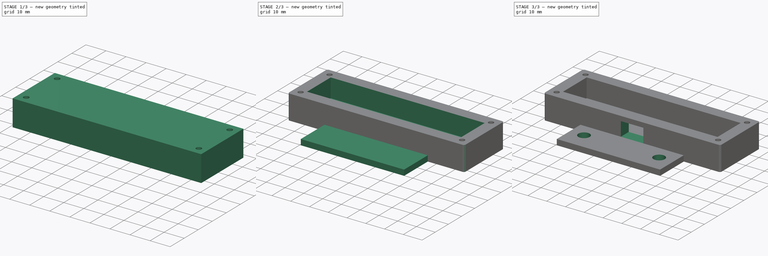
[diagram: build sequence overview — one tinted view per stage of 3, left to right]
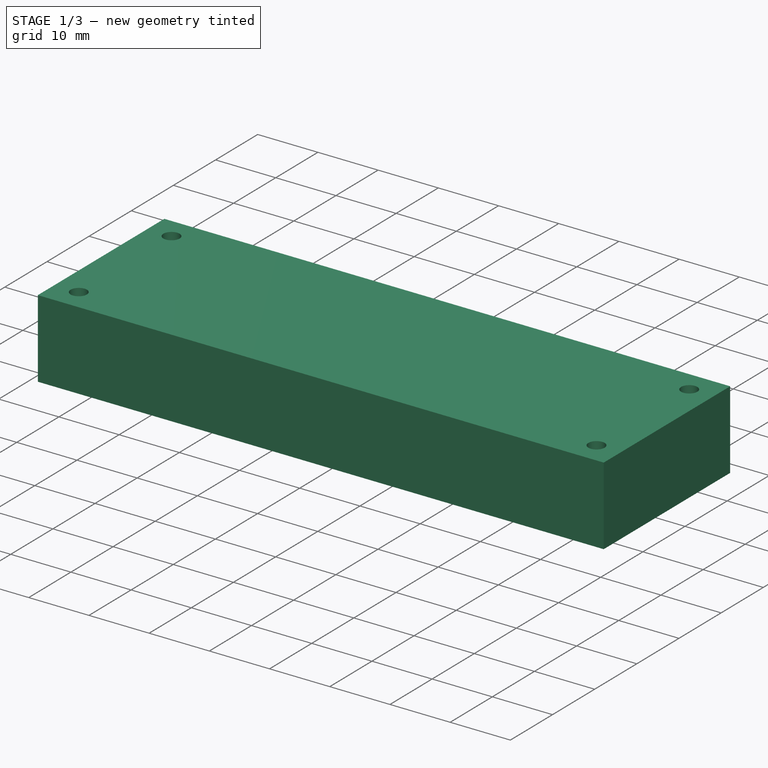
[diagram: stage 1 of 3 — iso view after this stage's code; geometry added in this stage tinted green]
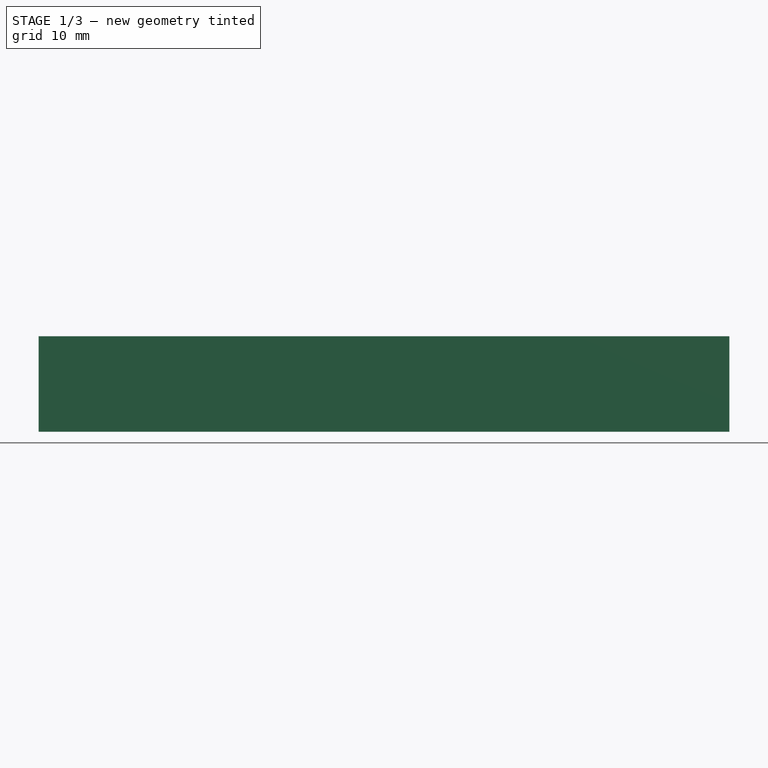
[diagram: stage 1 of 3 — front view after this stage's code; geometry added in this stage tinted green]
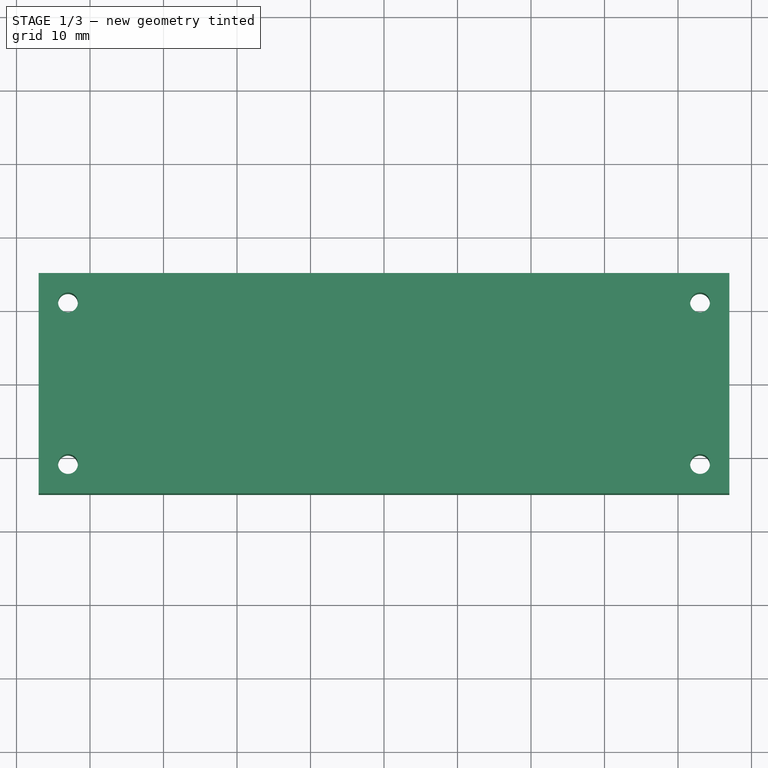
[diagram: stage 1 of 3 — top view after this stage's code; geometry added in this stage tinted green]
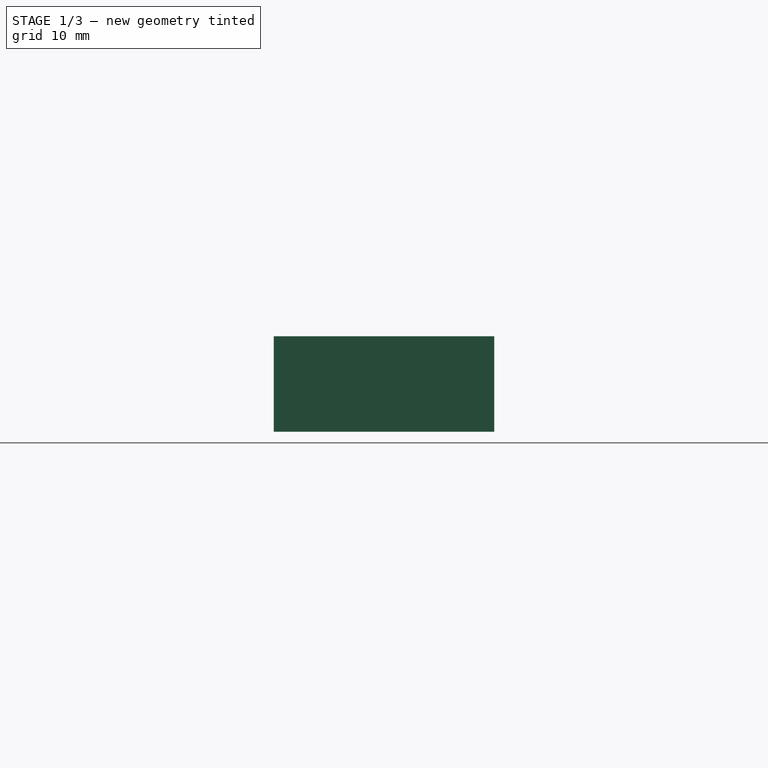
[diagram: stage 1 of 3 — right view after this stage's code; geometry added in this stage tinted green]
FCSTD DOCUMENT  (FreeCAD 0.19R24291 (Git))
Label: elp_lower_case
License: All rights reserved
LicenseURL: http://en.wikipedia.org/wiki/All_rights_reserved
objects: Sketcher::SketchObject×6, PartDesign::Pad×2, PartDesign::Hole×2, PartDesign::Pocket×2, PartDesign::Fillet×1, PartDesign::Body×1
note: 21 computed .brp shape members not serialized (recipe doc carries the construction recipe); baked Part::Feature solids carry a one-line shape summary decoded from their .brp

FEATURE [Sketcher::SketchObject] Sketch  label="base"
  FullyConstrained = true
  MapMode = 5
  Support = -> [XY_Plane]
  sketch-geometry (4):
    g0: LineSegment StartX=-41 StartY=9 StartZ=0 EndX=41 EndY=9 EndZ=0
    g1: LineSegment StartX=-41 StartY=-9 StartZ=0 EndX=41 EndY=-9 EndZ=0
    g2: LineSegment StartX=-41 StartY=9 StartZ=0 EndX=-41 EndY=-9 EndZ=0
    g3: LineSegment StartX=41 StartY=9 StartZ=0 EndX=41 EndY=-9 EndZ=0
  constraints (12):
    c: Horizontal(g0)
    c: Horizontal(g1)
    c: Vertical(g2)
    c: Vertical(g3)
    c: Coincident(g0,g2)
    c: Coincident(g2,g1)
    c: Coincident(g1,g3)
    c: Coincident(g3,g0)
    c: DistanceX(g1,g1) = 82
    c: DistanceY(g3,g3) = 18
    c: DistanceY(g-1,g0) = 9
    c: DistanceX(g1,g-1) = 41
FEATURE [Sketcher::SketchObject] Sketch001  label="frame"
  FullyConstrained = true
  MapMode = 5
  Support = -> [XY_Plane]
  sketch-geometry (4):
    g0: LineSegment StartX=-47 StartY=15 StartZ=0 EndX=-47 EndY=-15 EndZ=0
    g1: LineSegment StartX=-47 StartY=-15 StartZ=0 EndX=47 EndY=-15 EndZ=0
    g2: LineSegment StartX=-47 StartY=15 StartZ=0 EndX=47 EndY=15 EndZ=0
    g3: LineSegment StartX=47 StartY=15 StartZ=0 EndX=47 EndY=-15 EndZ=0
  constraints (12):
    c: Vertical(g0)
    c: Horizontal(g1)
    c: Horizontal(g2)
    c: Vertical(g3)
    c: Coincident(g2,g0)
    c: Coincident(g1,g3)
    c: Coincident(g2,g3)
    c: Coincident(g1,g0)
    c: DistanceY(g1,g2) = 30
    c: DistanceX(g0,g2) = 94
    c: DistanceX(g-1,g1) = 47
    c: DistanceY(g-1,g0) = 15
FEATURE [PartDesign::Pad] Pad
  Direction = (1,1,1)
  Length = 13
  Length2 = 100
  Profile = -> Sketch001
  Reversed = true
  Type = 0
FEATURE [Sketcher::SketchObject] Sketch002
  FullyConstrained = true
  MapMode = 5
  Support = -> [Pad]
  sketch-geometry (4):
    g0: Circle CenterX=-43 CenterY=11 CenterZ=0 NormalX=0 NormalY=0 NormalZ=1 AngleXU=0 Radius=1.5
    g1: Circle CenterX=-43 CenterY=-11 CenterZ=0 NormalX=0 NormalY=0 NormalZ=1 AngleXU=0 Radius=1.5
    g2: Circle CenterX=43 CenterY=11 CenterZ=0 NormalX=0 NormalY=0 NormalZ=1 AngleXU=0 Radius=1.5
    g3: Circle CenterX=43 CenterY=-11 CenterZ=0 NormalX=0 NormalY=0 NormalZ=1 AngleXU=0 Radius=1.5
  constraints (12):
    c: Radius(g0) = 1.5
    c: Equal(g0,g1) = 1.5
    c: Equal(g0,g2) = 1.5
    c: DistanceX(g0,g-1) = 43
    c: DistanceX(g1,g-1) = 43
    c: DistanceX(g-1,g3) = 43
    c: DistanceX(g-1,g2) = 43
    c: DistanceY(g-1,g2) = 11
    c: DistanceY(g3,g-1) = 11
    c: DistanceY(g1,g-1) = 11
    c: DistanceY(g-1,g0) = 11
    c: Radius(g3) = 1.5
FEATURE [PartDesign::Hole] Hole
  BaseFeature = -> Pad
  Depth = 25
  DepthType = 0
  Diameter = 2.7
  DrillForDepth = false
  DrillPoint = 1
  DrillPointAngle = 118
  HoleCutCountersinkAngle = 90
  HoleCutCustomValues = false
  HoleCutDepth = 0
  HoleCutDiameter = 6.1
  HoleCutType = 0
  ModelActualThread = false
  Profile = -> Sketch002
  Tapered = false
  TaperedAngle = 90
  ThreadAngle = 0
  ThreadClass = 0
  ThreadCutOffInner = 0
  ThreadCutOffOuter = 0
  ThreadDirection = 0
  ThreadFit = 0
  ThreadPitch = 0
  ThreadSize = 0
  ThreadType = 0
  Threaded = false
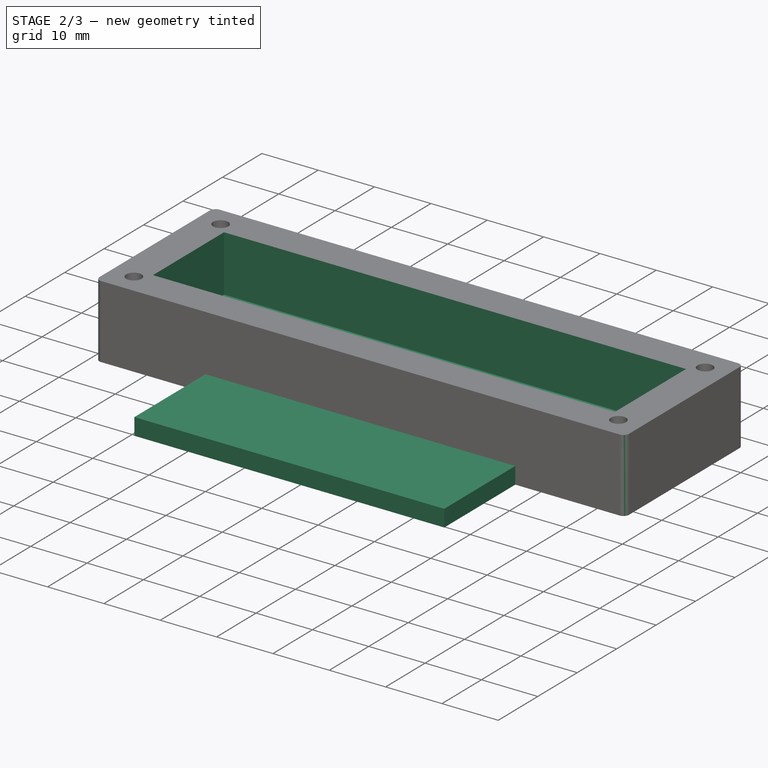
[diagram: stage 2 of 3 — iso view after this stage's code; geometry added in this stage tinted green]
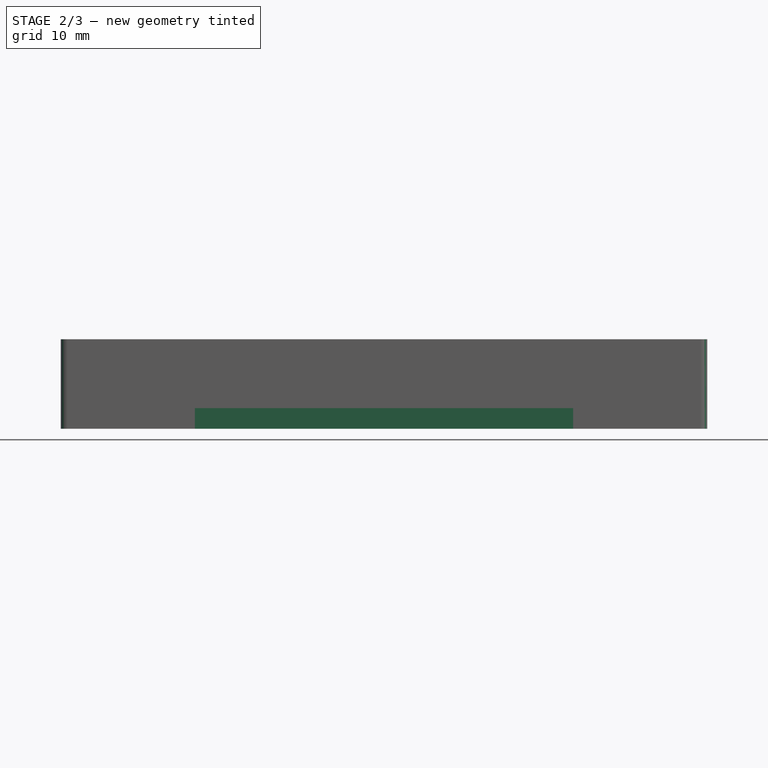
[diagram: stage 2 of 3 — front view after this stage's code; geometry added in this stage tinted green]
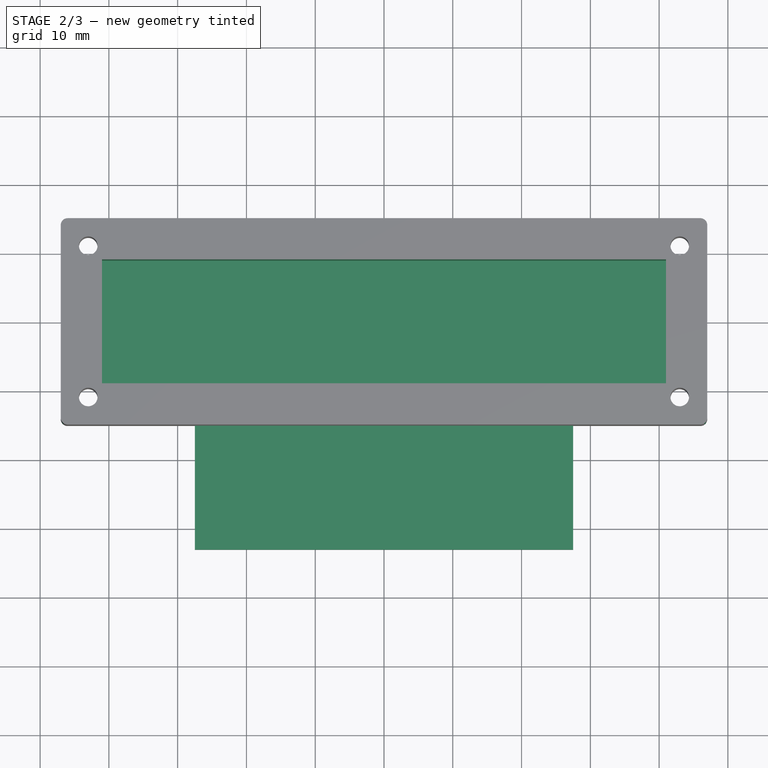
[diagram: stage 2 of 3 — top view after this stage's code; geometry added in this stage tinted green]
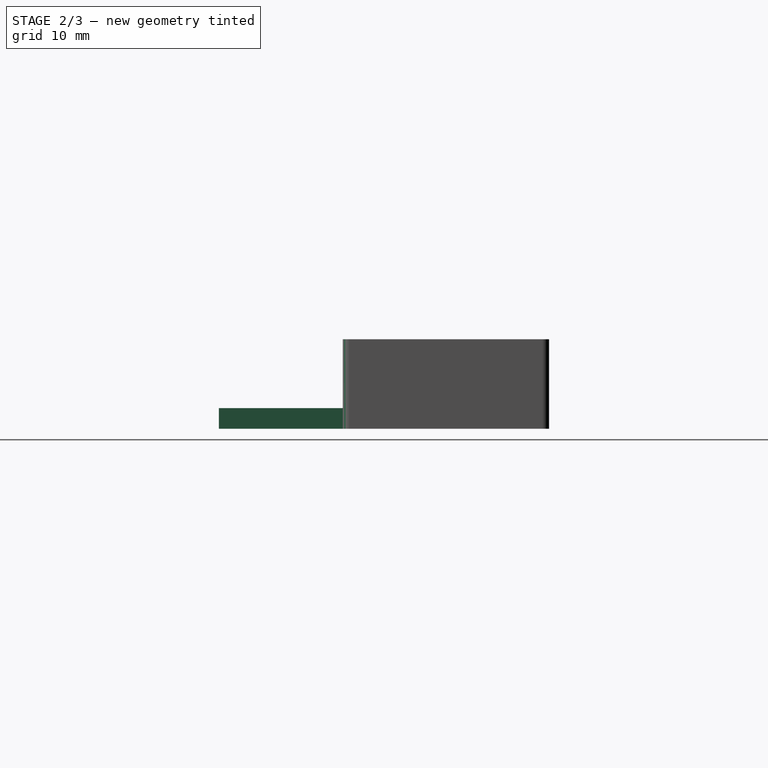
[diagram: stage 2 of 3 — right view after this stage's code; geometry added in this stage tinted green]
FEATURE [PartDesign::Pocket] Pocket
  BaseFeature = -> Hole
  Length = 10
  Length2 = 100
  Profile = -> Sketch
  Type = 0
FEATURE [Sketcher::SketchObject] Sketch003  label="mount"
  FullyConstrained = true
  MapMode = 5
  Placement = pos=(0,0,-13) rot=(1,0,0;3.14159rad)
  Support = -> [Pocket]
  sketch-geometry (4):
    g0: LineSegment StartX=-27.5 StartY=33 StartZ=0 EndX=27.5 EndY=33 EndZ=0
    g1: LineSegment StartX=-27.5 StartY=33 StartZ=0 EndX=-27.5 EndY=12 EndZ=0
    g2: LineSegment StartX=27.5 StartY=33 StartZ=0 EndX=27.5 EndY=12 EndZ=0
    g3: LineSegment StartX=-27.5 StartY=12 StartZ=0 EndX=27.5 EndY=12 EndZ=0
  constraints (12):
    c: Horizontal(g0)
    c: Vertical(g1)
    c: Vertical(g2)
    c: Horizontal(g3)
    c: Coincident(g0,g1)
    c: Coincident(g1,g3)
    c: Coincident(g3,g2)
    c: Coincident(g0,g2)
    c: DistanceX(g0,g0) = 55
    c: DistanceY(g2,g2) = 21
    c: DistanceY(g-1,g2) = 12
    c: DistanceX(g1,g-1) = 27.5
FEATURE [PartDesign::Pad] Pad001
  BaseFeature = -> Pocket
  Direction = (1,1,1)
  Length = 3
  Length2 = 100
  Profile = -> Sketch003
  Reversed = true
  Type = 0
FEATURE [PartDesign::Fillet] Fillet
  Base = -> Pad001 [Edge9,Edge5,Edge1,Edge2]
  BaseFeature = -> Pad001
  Radius = 1
  SupportTransform = false
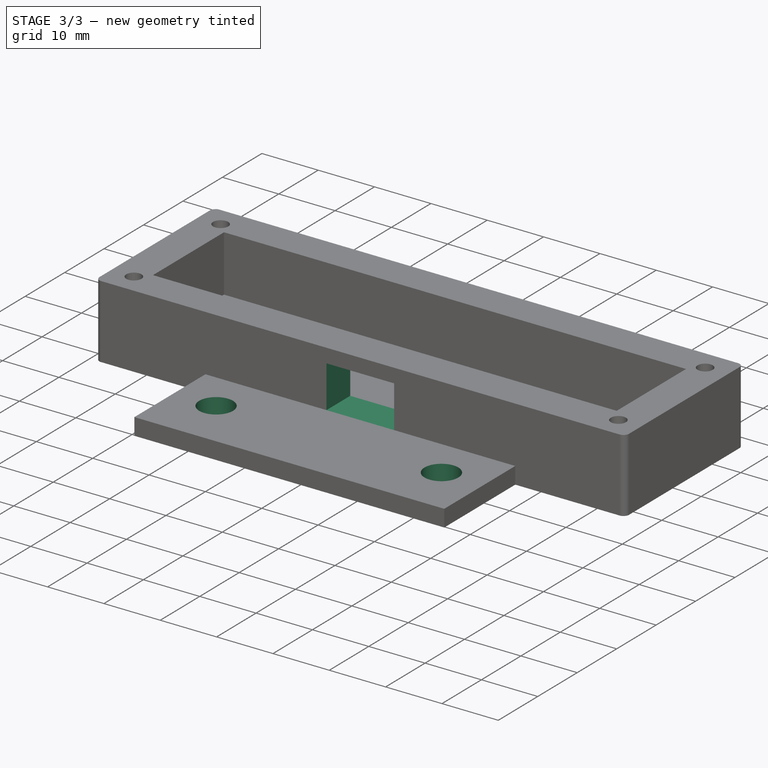
[diagram: stage 3 of 3 — iso view after this stage's code; geometry added in this stage tinted green]
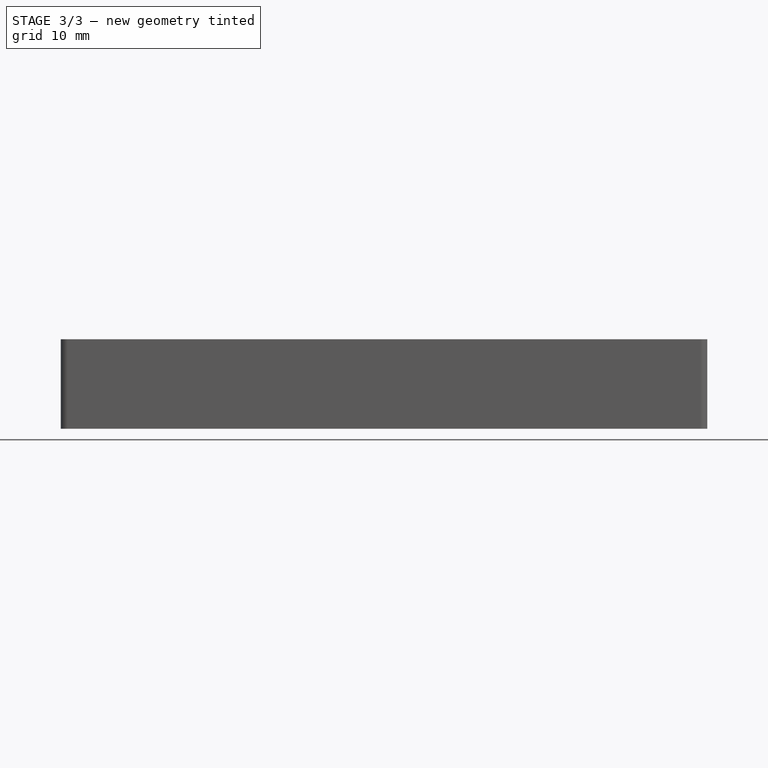
[diagram: stage 3 of 3 — front view after this stage's code; geometry added in this stage tinted green]
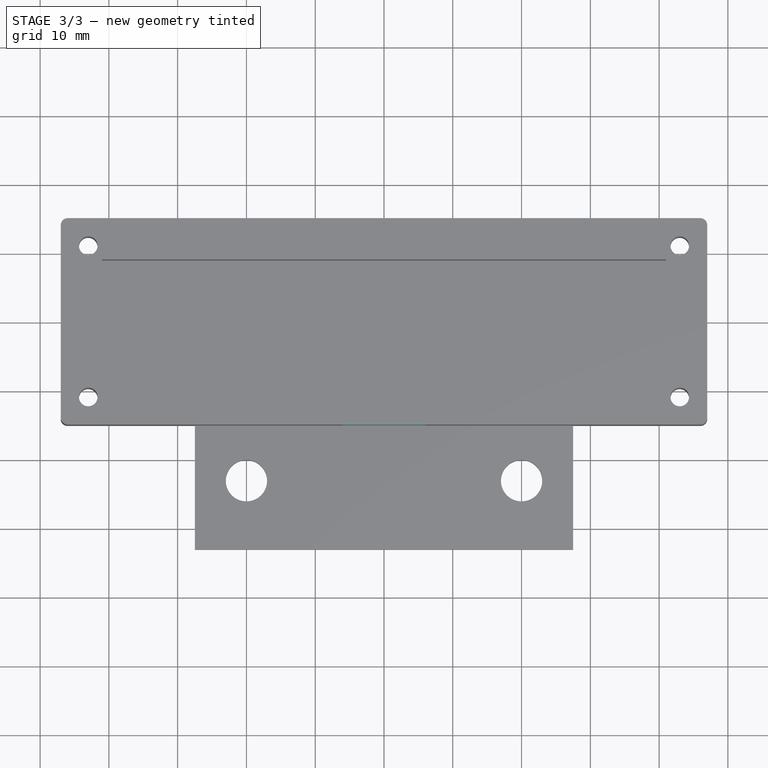
[diagram: stage 3 of 3 — top view after this stage's code; geometry added in this stage tinted green]
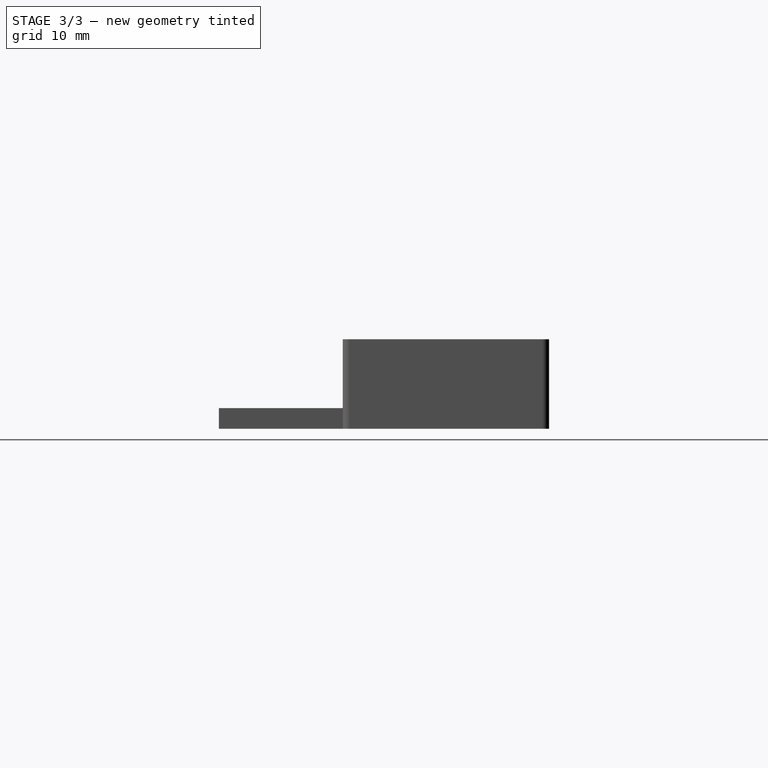
[diagram: stage 3 of 3 — right view after this stage's code; geometry added in this stage tinted green]
FEATURE [Sketcher::SketchObject] Sketch004  label="screw_hole"
  FullyConstrained = true
  MapMode = 5
  Placement = pos=(0,0,-10) rot=(0,0,1;0rad)
  Support = -> [Fillet]
  sketch-geometry (2):
    g0: Circle CenterX=20 CenterY=-23 CenterZ=0 NormalX=0 NormalY=0 NormalZ=1 AngleXU=0 Radius=2.5
    g1: Circle CenterX=-20 CenterY=-23 CenterZ=0 NormalX=0 NormalY=0 NormalZ=1 AngleXU=0 Radius=2.5
  constraints (6):
    c: Radius(g0) = 2.5
    c: Equal(g0,g1) = 2.5
    c: DistanceX(g1,g0) = 40
    c: DistanceX(g-1,g0) = 20
    c: DistanceY(g0,g-1) = 23
    c: DistanceY(g1,g-1) = 23
FEATURE [PartDesign::Hole] Hole001
  BaseFeature = -> Fillet
  Depth = 25
  DepthType = 0
  Diameter = 6
  DrillForDepth = false
  DrillPoint = 1
  DrillPointAngle = 118
  HoleCutCountersinkAngle = 90
  HoleCutCustomValues = false
  HoleCutDepth = 0
  HoleCutDiameter = 6.1
  HoleCutType = 0
  ModelActualThread = false
  Profile = -> Sketch004
  Tapered = false
  TaperedAngle = 90
  ThreadAngle = 0
  ThreadClass = 0
  ThreadCutOffInner = 0
  ThreadCutOffOuter = 0
  ThreadDirection = 0
  ThreadFit = 0
  ThreadPitch = 0
  ThreadSize = 0
  ThreadType = 0
  Threaded = false
FEATURE [Sketcher::SketchObject] Sketch010
  FullyConstrained = true
  MapMode = 5
  Placement = pos=(0,-15,0) rot=(1,0,0;1.5708rad)
  Support = -> [Hole001]
  sketch-geometry (4):
    g0: LineSegment StartX=-6 StartY=-10 StartZ=0 EndX=6 EndY=-10 EndZ=0
    g1: LineSegment StartX=-6 StartY=-2.5 StartZ=0 EndX=6 EndY=-2.5 EndZ=0
    g2: LineSegment StartX=6 StartY=-2.5 StartZ=0 EndX=6 EndY=-10 EndZ=0
    g3: LineSegment StartX=-6 StartY=-2.5 StartZ=0 EndX=-6 EndY=-10 EndZ=0
  constraints (12):
    c: Horizontal(g0)
    c: Horizontal(g1)
    c: Vertical(g2)
    c: Vertical(g3)
    c: Coincident(g3,g1)
    c: Coincident(g3,g0)
    c: Coincident(g0,g2)
    c: Coincident(g1,g2)
    c: DistanceX(g0,g0) = 12
    c: DistanceY(g2,g2) = 7.5
    c: DistanceY(g0,g-1) = 10
    c: DistanceX(g-1,g1) = 6
FEATURE [PartDesign::Pocket] Pocket001
  BaseFeature = -> Hole001
  Length = 6
  Length2 = 100
  Profile = -> Sketch010
  Type = 0
FEATURE [PartDesign::Body] Body
  Group = -> [Sketch,Sketch001,Pad,Sketch002,Hole,Pocket,Sketch003,Pad001,Fillet,Sketch004,Hole001,Sketch010,Pocket001]
  Origin = -> Origin
  Placement = pos=(2e-15,0,-13) rot=(0,1,0;3.14159rad)
  Tip = -> Pocket001
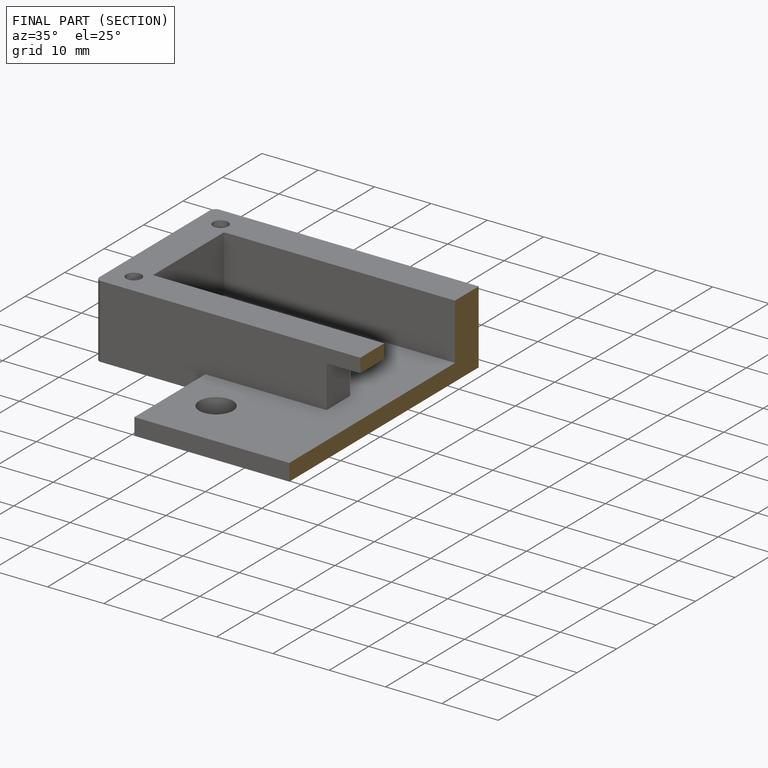
[diagram: finished part — half-section view (interior)]
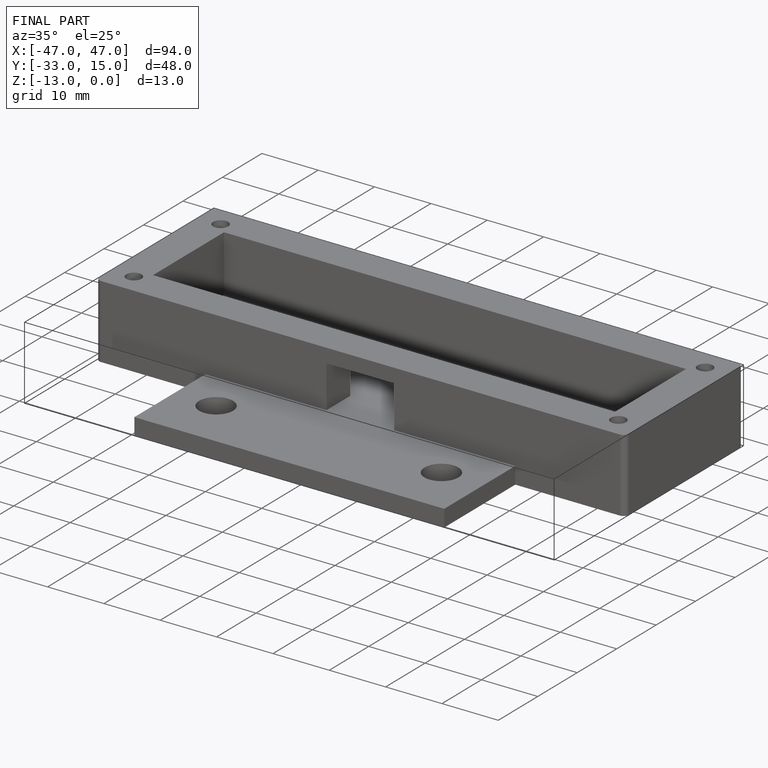
[diagram: finished part — iso view with bounding-box wireframe]
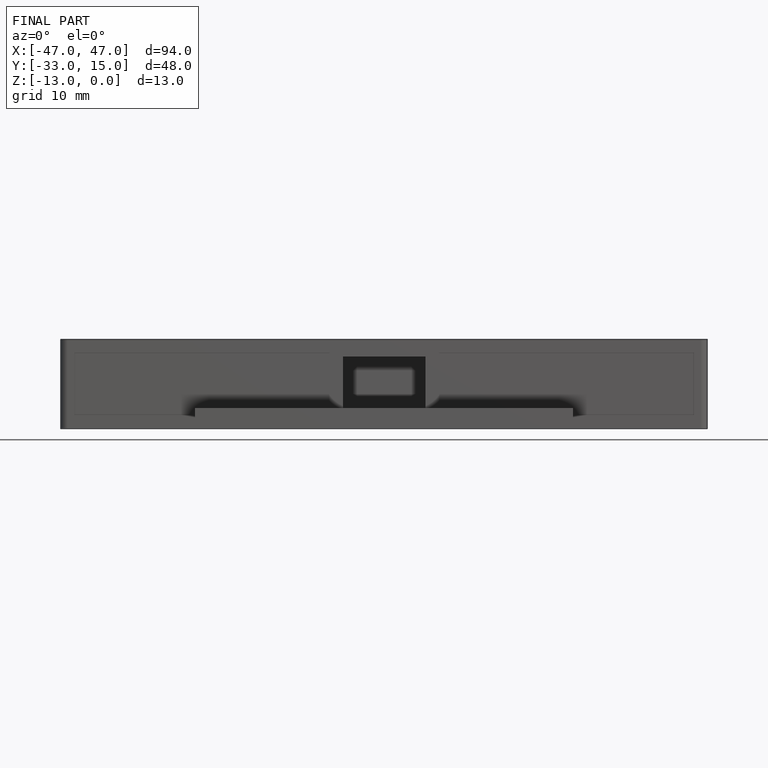
[diagram: finished part — front view with bounding-box wireframe]
